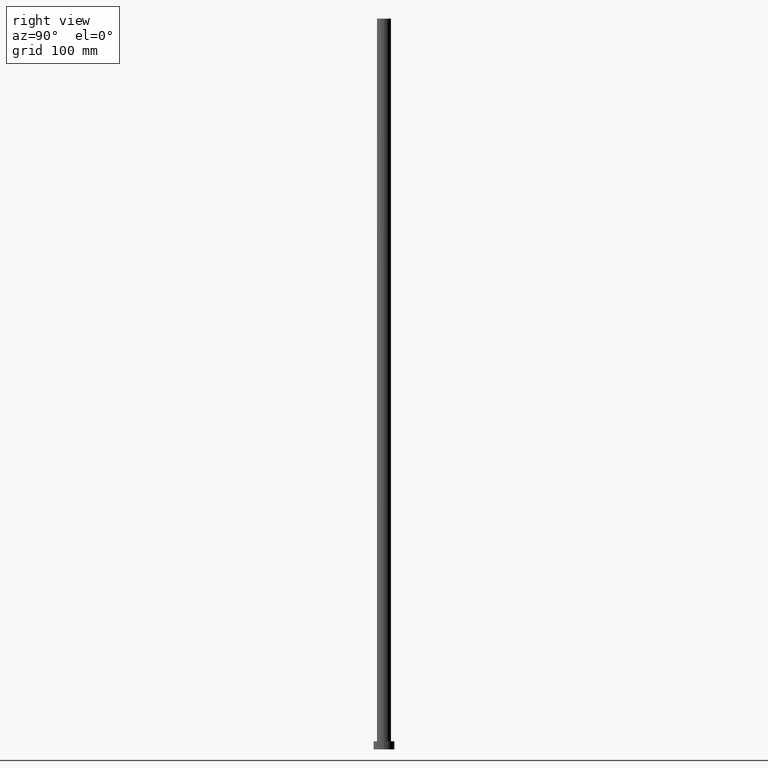
[diagram: clean part render]
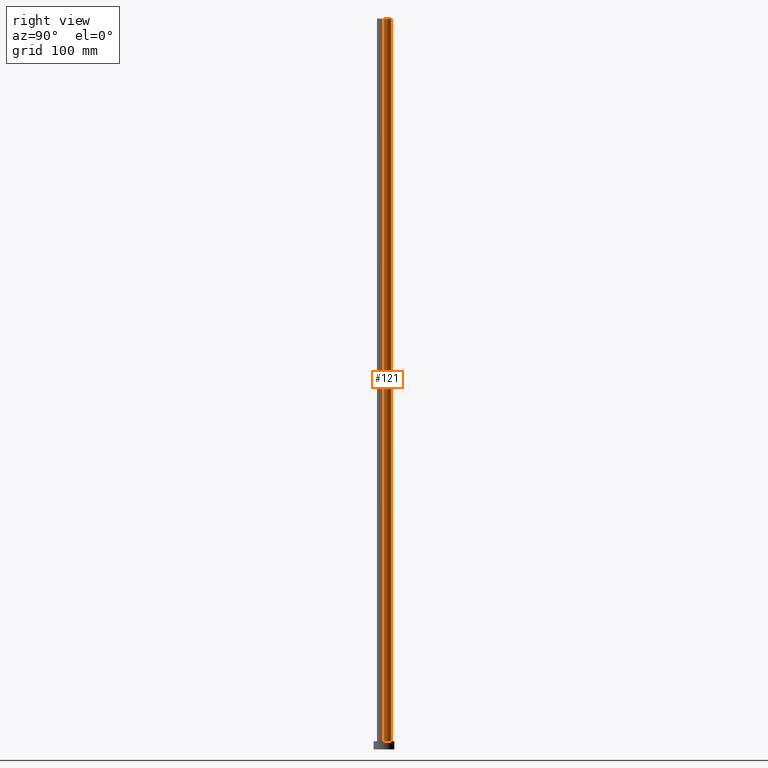
[diagram: same view with one face highlighted and labeled with its STEP entity id]
A machine part, right view. The second image highlights one B-rep face of the part: STEP entity #121.
In plain terms, the highlighted cylindrical surface (edge-blend (fillet) strip) has radius 6.1 mm, axis along (-0, -0, -1).
Its self-contained STEP definition (entity closure, byte-faithful):
#6 = AXIS2_PLACEMENT_3D ( 'NONE', #235, #14, #92 ) ;
#14 = DIRECTION ( 'NONE',  ( 0.000000000000000000, 0.000000000000000000, 1.000000000000000000 ) ) ;
#18 = EDGE_CURVE ( 'NONE', #111, #61, #88, .T. ) ;
#26 = EDGE_LOOP ( 'NONE', ( #124, #199, #186, #60 ) ) ;
#30 = AXIS2_PLACEMENT_3D ( 'NONE', #110, #116, #68 ) ;
#51 = DIRECTION ( 'NONE',  ( -0.000000000000000000, -0.000000000000000000, -1.000000000000000000 ) ) ;
#60 = ORIENTED_EDGE ( 'NONE', *, *, #70, .F. ) ;
#61 = VERTEX_POINT ( 'NONE', #248 ) ;
#68 = DIRECTION ( 'NONE',  ( 1.000000000000000000, 0.000000000000000000, 0.000000000000000000 ) ) ;
#69 = CARTESIAN_POINT ( 'NONE',  ( -6.099999999999999645, 0.000000000000000000, 630.0000000000000000 ) ) ;
#70 = EDGE_CURVE ( 'NONE', #104, #61, #153, .T. ) ;
#74 = LINE ( 'NONE', #226, #210 ) ;
#75 = CARTESIAN_POINT ( 'NONE',  ( 6.099999999999999645, 7.470345474798854293E-16, 630.0000000000000000 ) ) ;
#88 = CIRCLE ( 'NONE', #6, 6.099999999999999645 ) ;
#91 = CARTESIAN_POINT ( 'NONE',  ( -6.099999999999999645, 0.000000000000000000, 630.0000000000000000 ) ) ;
#92 = DIRECTION ( 'NONE',  ( 1.000000000000000000, 0.000000000000000000, 0.000000000000000000 ) ) ;
#101 = EDGE_CURVE ( 'NONE', #211, #104, #113, .T. ) ;
#104 = VERTEX_POINT ( 'NONE', #91 ) ;
#110 = CARTESIAN_POINT ( 'NONE',  ( 0.000000000000000000, 0.000000000000000000, 630.0000000000000000 ) ) ;
#111 = VERTEX_POINT ( 'NONE', #133 ) ;
#113 = CIRCLE ( 'NONE', #30, 6.099999999999999645 ) ;
#114 = AXIS2_PLACEMENT_3D ( 'NONE', #132, #254, #218 ) ;
#115 = CYLINDRICAL_SURFACE ( 'NONE', #114, 6.099999999999999645 ) ;
#116 = DIRECTION ( 'NONE',  ( 0.000000000000000000, 0.000000000000000000, 1.000000000000000000 ) ) ;
#121 = ADVANCED_FACE ( 'NONE', ( #178 ), #115, .T. ) ;
#124 = ORIENTED_EDGE ( 'NONE', *, *, #101, .F. ) ;
#132 = CARTESIAN_POINT ( 'NONE',  ( 0.000000000000000000, 0.000000000000000000, 630.0000000000000000 ) ) ;
#133 = CARTESIAN_POINT ( 'NONE',  ( 6.099999999999999645, 7.470345474798854293E-16, 7.000000000000000000 ) ) ;
#153 = LINE ( 'NONE', #69, #232 ) ;
#158 = EDGE_CURVE ( 'NONE', #211, #111, #74, .T. ) ;
#178 = FACE_OUTER_BOUND ( 'NONE', #26, .T. ) ;
#186 = ORIENTED_EDGE ( 'NONE', *, *, #18, .T. ) ;
#199 = ORIENTED_EDGE ( 'NONE', *, *, #158, .T. ) ;
#210 = VECTOR ( 'NONE', #225, 1000.000000000000000 ) ;
#211 = VERTEX_POINT ( 'NONE', #75 ) ;
#218 = DIRECTION ( 'NONE',  ( -1.000000000000000000, 0.000000000000000000, 0.000000000000000000 ) ) ;
#225 = DIRECTION ( 'NONE',  ( -0.000000000000000000, -0.000000000000000000, -1.000000000000000000 ) ) ;
#226 = CARTESIAN_POINT ( 'NONE',  ( 6.099999999999999645, 7.470345474798854293E-16, 630.0000000000000000 ) ) ;
#232 = VECTOR ( 'NONE', #51, 1000.000000000000000 ) ;
#235 = CARTESIAN_POINT ( 'NONE',  ( 0.000000000000000000, 0.000000000000000000, 7.000000000000000000 ) ) ;
#248 = CARTESIAN_POINT ( 'NONE',  ( -6.099999999999999645, 0.000000000000000000, 7.000000000000000000 ) ) ;
#254 = DIRECTION ( 'NONE',  ( -0.000000000000000000, -0.000000000000000000, -1.000000000000000000 ) ) ;